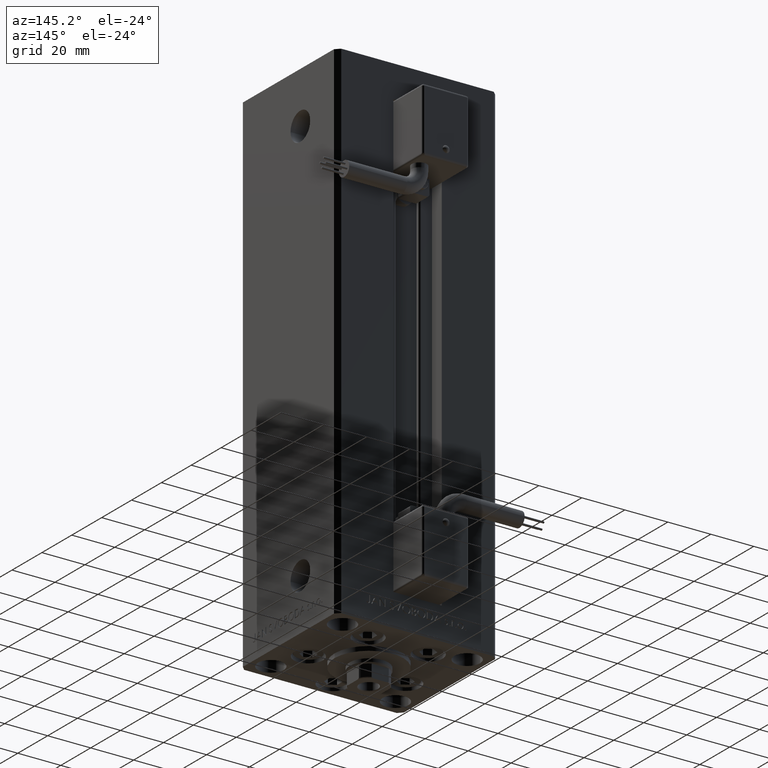
[diagram: clean part render]
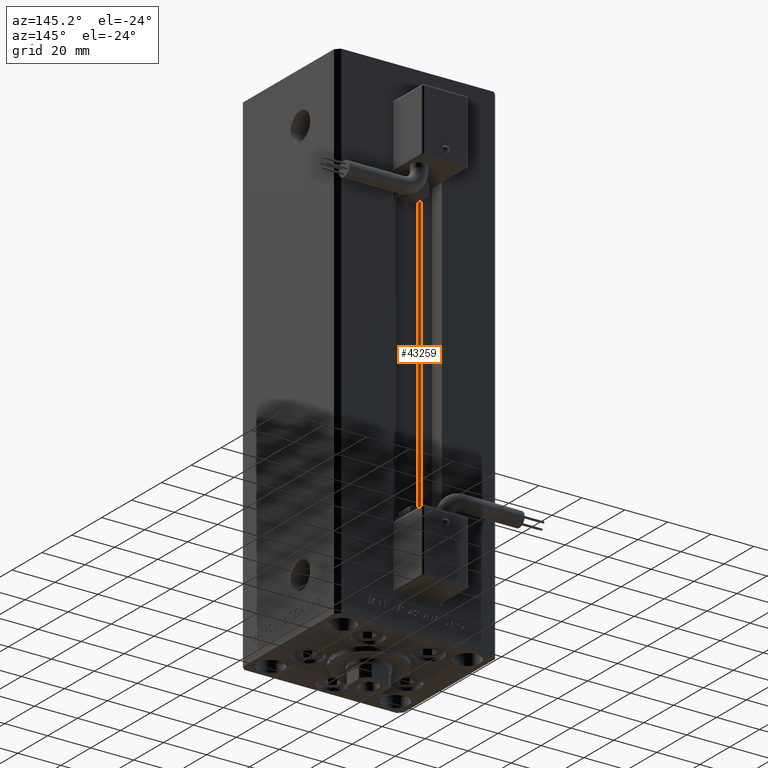
[diagram: same view with one face highlighted and labeled with its STEP entity id]
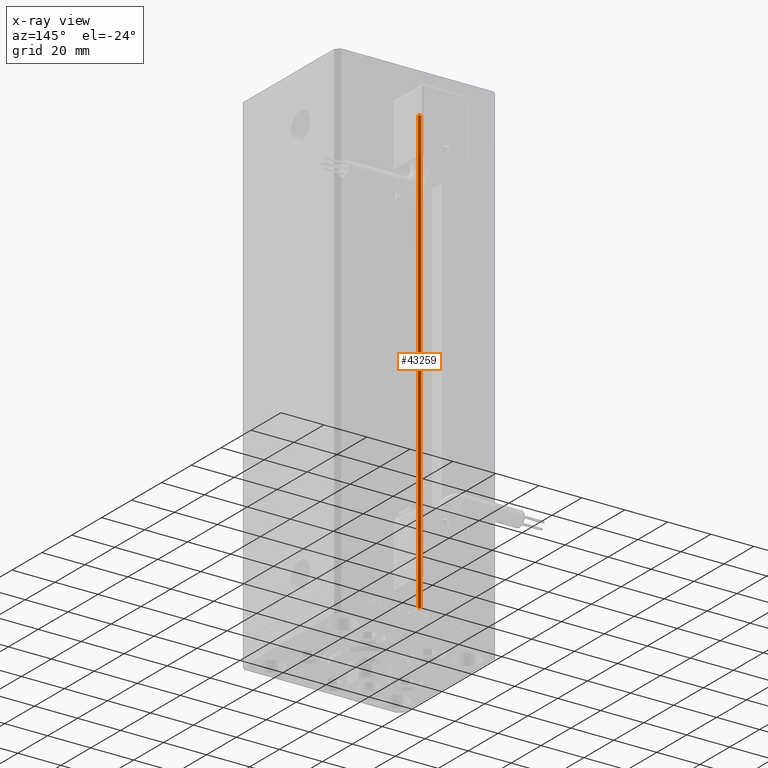
[diagram: x-ray of the same camera — body ghosted, the highlighted face saturated]
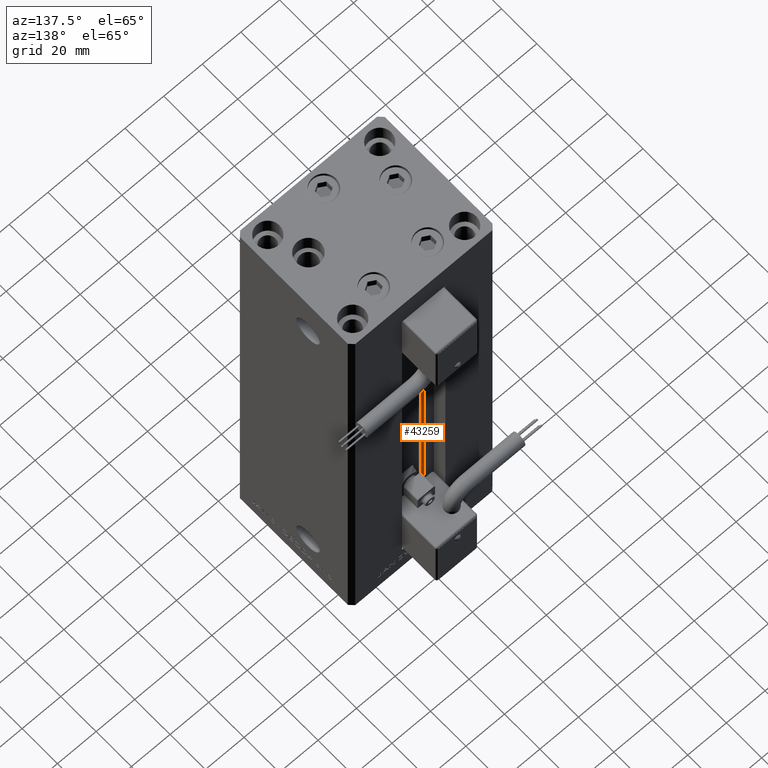
[diagram: same view with one face highlighted and labeled with its STEP entity id]
A machine part, auxiliary view. The second image highlights one B-rep face of the part: STEP entity #43259.
The next image is the same camera in x-ray: the body ghosted, the highlighted face saturated — about 13% of this face is hidden behind the body in this view.
A second angle (auxiliary view) of the same face is appended — the face is thin or edge-on in the first view.
In plain terms, the highlighted cylindrical surface (edge-blend (fillet) strip) has radius 0.9333 mm, axis along (0, 0, 1).
Its self-contained STEP definition (entity closure, byte-faithful):
#1550 = VERTEX_POINT ( 'NONE', #7028 ) ;
#3659 = AXIS2_PLACEMENT_3D ( 'NONE', #43751, #19437, #19707 ) ;
#4980 = VERTEX_POINT ( 'NONE', #35815 ) ;
#6157 = CIRCLE ( 'NONE', #3659, 0.9333333333340008142 ) ;
#6320 = DIRECTION ( 'NONE',  ( -0.000000000000000000, -0.000000000000000000, 1.000000000000000000 ) ) ;
#7028 = CARTESIAN_POINT ( 'NONE',  ( -6.183333333334001480, 25.99999999999999289, 0.000000000000000000 ) ) ;
#7848 = VERTEX_POINT ( 'NONE', #37844 ) ;
#7936 = CARTESIAN_POINT ( 'NONE',  ( -5.250000000000000000, 25.06666666666599141, 0.000000000000000000 ) ) ;
#8306 = CARTESIAN_POINT ( 'NONE',  ( -5.250000000000000000, 25.06666666666599141, 0.000000000000000000 ) ) ;
#10946 = EDGE_CURVE ( 'NONE', #7848, #4980, #6157, .T. ) ;
#12011 = CARTESIAN_POINT ( 'NONE',  ( -6.183333333334001480, 25.99999999999999289, 0.000000000000000000 ) ) ;
#12151 = EDGE_CURVE ( 'NONE', #1550, #40642, #27344, .T. ) ;
#14649 = AXIS2_PLACEMENT_3D ( 'NONE', #23598, #27577, #34702 ) ;
#18794 = EDGE_CURVE ( 'NONE', #40642, #4980, #48481, .T. ) ;
#19437 = DIRECTION ( 'NONE',  ( 0.000000000000000000, 0.000000000000000000, -1.000000000000000000 ) ) ;
#19707 = DIRECTION ( 'NONE',  ( 1.000000000000000000, 0.000000000000000000, 0.000000000000000000 ) ) ;
#23598 = CARTESIAN_POINT ( 'NONE',  ( -6.183333333334001480, 25.06666666666599141, 0.000000000000000000 ) ) ;
#24464 = CYLINDRICAL_SURFACE ( 'NONE', #33052, 0.9333333333340008142 ) ;
#25044 = VECTOR ( 'NONE', #36052, 1000.000000000000000 ) ;
#25427 = FACE_OUTER_BOUND ( 'NONE', #41382, .T. ) ;
#27344 = CIRCLE ( 'NONE', #14649, 0.9333333333340008142 ) ;
#27577 = DIRECTION ( 'NONE',  ( -0.000000000000000000, -0.000000000000000000, -1.000000000000000000 ) ) ;
#32476 = EDGE_CURVE ( 'NONE', #1550, #7848, #48226, .T. ) ;
#33052 = AXIS2_PLACEMENT_3D ( 'NONE', #41558, #49752, #41808 ) ;
#34702 = DIRECTION ( 'NONE',  ( 1.000000000000000000, 0.000000000000000000, 0.000000000000000000 ) ) ;
#35815 = CARTESIAN_POINT ( 'NONE',  ( -5.250000000000000000, 25.06666666666599141, 206.0000000000000000 ) ) ;
#36052 = DIRECTION ( 'NONE',  ( -0.000000000000000000, -0.000000000000000000, 1.000000000000000000 ) ) ;
#37539 = ORIENTED_EDGE ( 'NONE', *, *, #12151, .F. ) ;
#37740 = ORIENTED_EDGE ( 'NONE', *, *, #10946, .T. ) ;
#37844 = CARTESIAN_POINT ( 'NONE',  ( -6.183333333334001480, 25.99999999999999289, 206.0000000000000000 ) ) ;
#40354 = VECTOR ( 'NONE', #6320, 1000.000000000000000 ) ;
#40642 = VERTEX_POINT ( 'NONE', #7936 ) ;
#41382 = EDGE_LOOP ( 'NONE', ( #42198, #37539, #46517, #37740 ) ) ;
#41558 = CARTESIAN_POINT ( 'NONE',  ( -6.183333333334001480, 25.06666666666599141, 0.000000000000000000 ) ) ;
#41808 = DIRECTION ( 'NONE',  ( 1.000000000000000000, 0.000000000000000000, 0.000000000000000000 ) ) ;
#42198 = ORIENTED_EDGE ( 'NONE', *, *, #18794, .F. ) ;
#43259 = ADVANCED_FACE ( 'NONE', ( #25427 ), #24464, .T. ) ;
#43751 = CARTESIAN_POINT ( 'NONE',  ( -6.183333333334001480, 25.06666666666599141, 206.0000000000000000 ) ) ;
#46517 = ORIENTED_EDGE ( 'NONE', *, *, #32476, .T. ) ;
#48226 = LINE ( 'NONE', #12011, #40354 ) ;
#48481 = LINE ( 'NONE', #8306, #25044 ) ;
#49752 = DIRECTION ( 'NONE',  ( -0.000000000000000000, -0.000000000000000000, 1.000000000000000000 ) ) ;